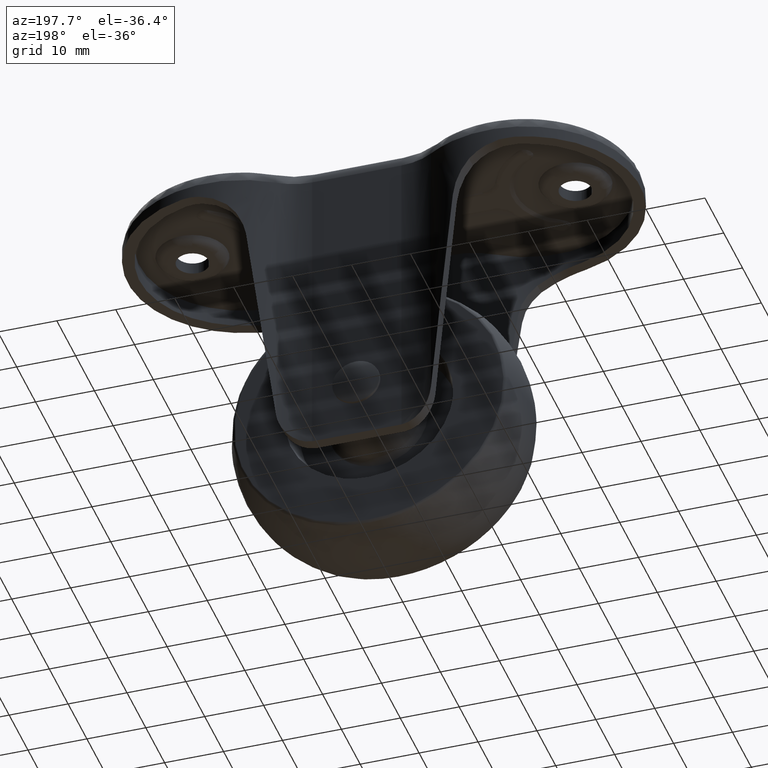
[diagram: clean part render]
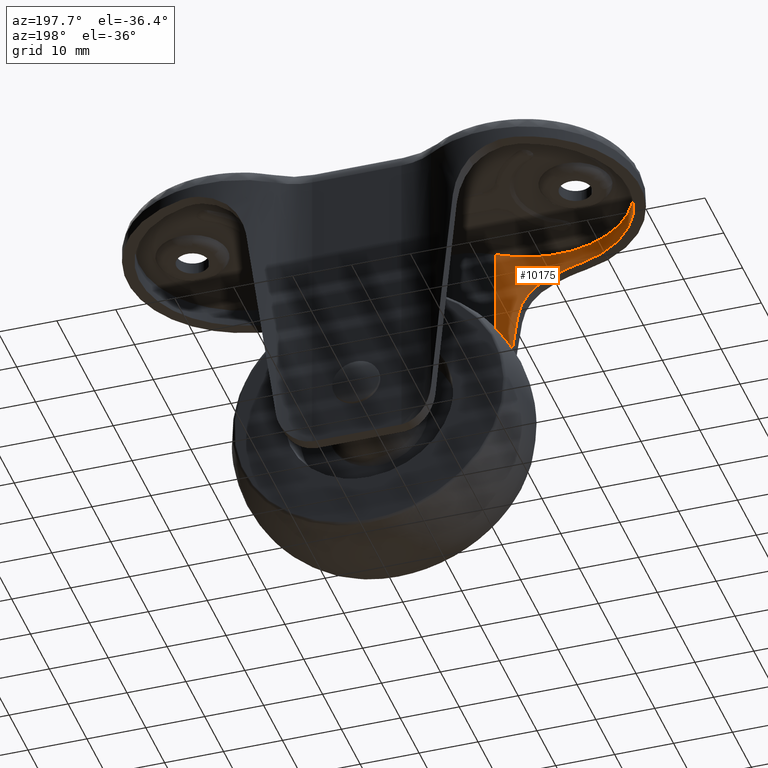
[diagram: same view with one face highlighted and labeled with its STEP entity id]
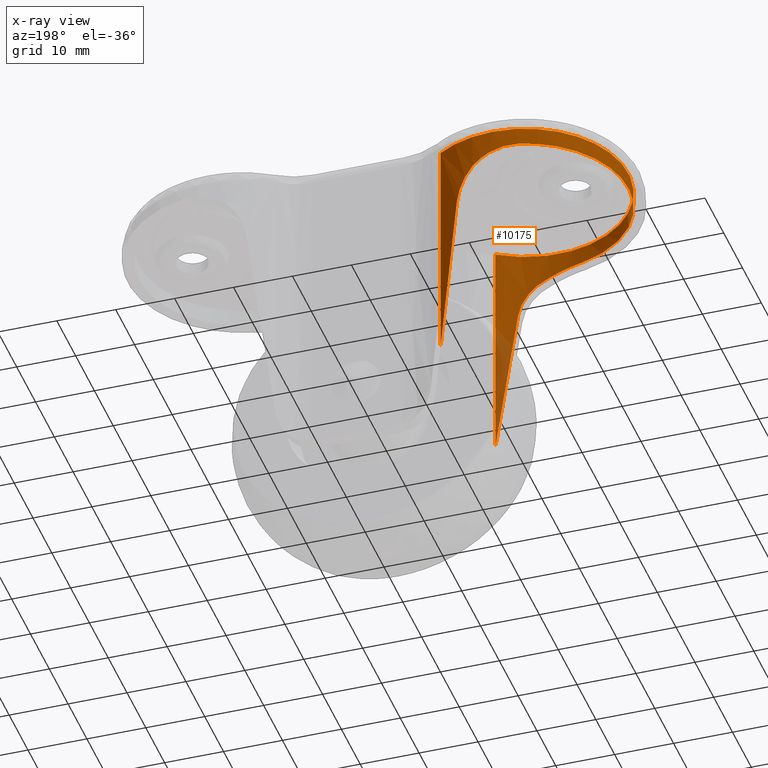
[diagram: x-ray of the same camera — body ghosted, the highlighted face saturated]
A machine part, auxiliary view. The second image highlights one B-rep face of the part: STEP entity #10175.
The next image is the same camera in x-ray: the body ghosted, the highlighted face saturated — about 10% of this face is hidden behind the body in this view.
In plain terms, the highlighted face is a freeform B-spline surface patch.
Its self-contained STEP definition (entity closure, byte-faithful):
#9586=CARTESIAN_POINT('',(-20.565739739598200,17.159716095082249,-7.781735637525290));
#9587=VERTEX_POINT('',#9586);
#9593=CARTESIAN_POINT('',(-28.248421000000100,16.976481349406850,-5.0));
#9594=VERTEX_POINT('',#9593);
#9595=CARTESIAN_POINT('',(-28.248421000000100,16.976481349406850,-5.0));
#9596=CARTESIAN_POINT('',(-27.563879356911009,17.147790175542131,-5.0));
#9597=CARTESIAN_POINT('',(-26.881096035706442,17.274823562507880,-5.058178189834202));
#9598=CARTESIAN_POINT('',(-25.860647977691588,17.404181967958088,-5.234894330271882));
#9599=CARTESIAN_POINT('',(-25.521125422855160,17.437071472463309,-5.308779721977223));
#9600=CARTESIAN_POINT('',(-25.012986543101778,17.471481885789132,-5.443068873454924));
#9601=CARTESIAN_POINT('',(-24.843317258117771,17.480475089957910,-5.491909010557856));
#9602=CARTESIAN_POINT('',(-24.507749933678109,17.493438294781509,-5.596567635670303));
#9603=CARTESIAN_POINT('',(-24.341669027072271,17.497436833756929,-5.652408377538183));
#9604=CARTESIAN_POINT('',(-23.519618210705360,17.505763877720351,-5.948883770848481));
#9605=CARTESIAN_POINT('',(-22.888518383339662,17.475245787062729,-6.240928368338763));
#9606=CARTESIAN_POINT('',(-22.132241756269000,17.400706294914489,-6.674171335395933));
#9607=CARTESIAN_POINT('',(-21.982628186241651,17.383970835756809,-6.764254526446122));
#9608=CARTESIAN_POINT('',(-21.686718068965099,17.347073463870998,-6.951383198212179));
#9609=CARTESIAN_POINT('',(-21.540695212831761,17.326939854103689,-7.048270663186229));
#9610=CARTESIAN_POINT('',(-21.110535658208359,17.262244778509459,-7.347404444212644));
#9611=CARTESIAN_POINT('',(-20.833410685897430,17.213286432074501,-7.558652866243830));
#9612=CARTESIAN_POINT('',(-20.565739739598200,17.159716095082249,-7.781735637525290));
#9613=B_SPLINE_CURVE_WITH_KNOTS('',3,(#9595,#9596,#9597,#9598,#9599,#9600,#9601,#9602,#9603,#9604,#9605,#9606,#9607,#9608,#9609,#9610,#9611,#9612),.UNSPECIFIED.,.F.,.U.,(4,2,2,2,2,2,2,2,4),(0.0,0.250000000000001,0.375000000000001,0.437500000000002,0.500000000000002,0.750000000000002,0.812500000000002,0.875000000000001,1.0),.UNSPECIFIED.);
#9614=EDGE_CURVE('',#9594,#9587,#9613,.T.);
#9661=CARTESIAN_POINT('',(-28.248421000000100,-16.976481349406850,-5.0));
#9662=VERTEX_POINT('',#9661);
#9668=CARTESIAN_POINT('',(-20.565739739598200,-17.159716095082249,-7.781735637525290));
#9669=VERTEX_POINT('',#9668);
#9670=CARTESIAN_POINT('',(-20.565739739598200,-17.159716095082249,-7.781735637525290));
#9671=CARTESIAN_POINT('',(-21.101156997771831,-17.266871852359529,-7.335507869323049));
#9672=CARTESIAN_POINT('',(-21.669593562100580,-17.354677695323609,-6.940151118333926));
#9673=CARTESIAN_POINT('',(-22.572170203714592,-17.444274421466510,-6.421693926125383));
#9674=CARTESIAN_POINT('',(-22.881397987592951,-17.467112740300060,-6.261382978243353));
#9675=CARTESIAN_POINT('',(-23.278823102452670,-17.485314838571711,-6.077052883542763));
#9676=CARTESIAN_POINT('',(-23.358853749315792,-17.488437092146889,-6.040991454448291));
#9677=CARTESIAN_POINT('',(-23.520021623530919,-17.493602293377648,-5.970495227026479));
#9678=CARTESIAN_POINT('',(-23.601276366659270,-17.495646978749541,-5.936012813529754));
#9679=CARTESIAN_POINT('',(-23.845763624313090,-17.500079602780801,-5.835427869614782));
#9680=CARTESIAN_POINT('',(-24.009553002398309,-17.500771182134930,-5.772239440157622));
#9681=CARTESIAN_POINT('',(-24.832361429510271,-17.492584317917292,-5.475231783034452));
#9682=CARTESIAN_POINT('',(-25.502872948899881,-17.448890177280621,-5.297813456750220));
#9683=CARTESIAN_POINT('',(-26.355289100845649,-17.341630199361209,-5.149008401740234));
#9684=CARTESIAN_POINT('',(-26.526491747210478,-17.317537806889909,-5.122920496495435));
#9685=CARTESIAN_POINT('',(-26.784371332948950,-17.277292766538910,-5.089329446103690));
#9686=CARTESIAN_POINT('',(-26.870510529733060,-17.263193191444639,-5.079056204664499));
#9687=CARTESIAN_POINT('',(-27.043147799848011,-17.233598618243640,-5.060366222173532));
#9688=CARTESIAN_POINT('',(-27.129716382841380,-17.218089401095330,-5.051944847789017));
#9689=CARTESIAN_POINT('',(-27.561754472267729,-17.137314295346059,-5.014640592317037));
#9690=CARTESIAN_POINT('',(-27.905871603018038,-17.062205476905561,-5.0));
#9691=CARTESIAN_POINT('',(-28.248421000000100,-16.976481349406850,-5.0));
#9692=B_SPLINE_CURVE_WITH_KNOTS('',3,(#9670,#9671,#9672,#9673,#9674,#9675,#9676,#9677,#9678,#9679,#9680,#9681,#9682,#9683,#9684,#9685,#9686,#9687,#9688,#9689,#9690,#9691),.UNSPECIFIED.,.F.,.U.,(4,2,2,2,2,2,2,2,2,2,4),(0.0,0.249999999999997,0.374999999999996,0.406249999999996,0.437499999999997,0.499999999999997,0.750000000000001,0.812500000000002,0.843750000000002,0.875000000000002,1.0),.UNSPECIFIED.);
#9693=EDGE_CURVE('',#9669,#9662,#9692,.T.);
#9739=CARTESIAN_POINT('',(-17.561019000000002,-16.272354583207651,-13.781307000000000));
#9740=VERTEX_POINT('',#9739);
#9741=CARTESIAN_POINT('',(-17.561019000000002,-16.272354583207651,-13.781307000000000));
#9742=CARTESIAN_POINT('',(-17.631800951315999,-16.300363043976699,-13.204837538678440));
#9743=CARTESIAN_POINT('',(-17.751122760634139,-16.347249003990441,-12.644791592778571));
#9744=CARTESIAN_POINT('',(-17.998819086929270,-16.439087013468189,-11.827410663854209));
#9745=CARTESIAN_POINT('',(-18.092910781273140,-16.473276827396742,-11.558752792424331));
#9746=CARTESIAN_POINT('',(-18.251464299045349,-16.528988941020000,-11.161406184220780));
#9747=CARTESIAN_POINT('',(-18.307222451180579,-16.548296838456359,-11.029898551900320));
#9748=CARTESIAN_POINT('',(-18.395276340686362,-16.578239768480600,-10.834052197153280));
#9749=CARTESIAN_POINT('',(-18.425364036317220,-16.588384201821160,-10.769006007350811));
#9750=CARTESIAN_POINT('',(-18.487025176481509,-16.608978449924820,-10.639387006863300));
#9751=CARTESIAN_POINT('',(-18.518627163392068,-16.619437406683911,-10.574760920427080));
#9752=CARTESIAN_POINT('',(-18.808392374903828,-16.714385275463879,-9.998005201110701));
#9753=CARTESIAN_POINT('',(-19.105586634789979,-16.805223025671399,-9.515489904846742));
#9754=CARTESIAN_POINT('',(-19.776720165270230,-16.986309504117362,-8.606344612358750));
#9755=CARTESIAN_POINT('',(-20.150645513300450,-17.076641200497889,-8.179720470808466));
#9756=CARTESIAN_POINT('',(-20.565739739598200,-17.159716095082249,-7.781735637525289));
#9757=B_SPLINE_CURVE_WITH_KNOTS('',3,(#9741,#9742,#9743,#9744,#9745,#9746,#9747,#9748,#9749,#9750,#9751,#9752,#9753,#9754,#9755,#9756),.UNSPECIFIED.,.F.,.U.,(4,2,2,2,2,2,2,4),(0.0,0.250000000000003,0.375000000000004,0.437500000000004,0.468750000000005,0.500000000000006,0.750000000000003,1.0),.UNSPECIFIED.);
#9758=EDGE_CURVE('',#9740,#9669,#9757,.T.);
#9789=CARTESIAN_POINT('',(-14.252395133952280,-14.533898285573720,-40.727884689475850));
#9790=VERTEX_POINT('',#9789);
#9791=CARTESIAN_POINT('',(-14.252395133952261,-14.533898285573720,-40.727884689475907));
#9792=CARTESIAN_POINT('',(-15.813351052193472,-15.580801270950804,-28.014919534274089));
#9793=CARTESIAN_POINT('',(-17.561018999999980,-16.272354583207651,-13.781306999999989));
#9801=(BOUNDED_CURVE()B_SPLINE_CURVE(2,(#9791,#9792,#9793),.UNSPECIFIED.,.F.,.U.)CURVE()GEOMETRIC_REPRESENTATION_ITEM()QUASI_UNIFORM_CURVE()RATIONAL_B_SPLINE_CURVE((1.0,0.994281928487948,1.0))REPRESENTATION_ITEM(''));
#9802=EDGE_CURVE('',#9790,#9740,#9801,.T.);
#9982=CARTESIAN_POINT('',(-28.248421000000100,-16.976481349406839,-5.0));
#9983=CARTESIAN_POINT('',(-41.500000000000000,-13.660229568602624,-5.0));
#9984=CARTESIAN_POINT('',(-41.500000000000000,0.0,-5.0));
#9985=CARTESIAN_POINT('',(-41.500000000000000,13.660229568602624,-5.0));
#9986=CARTESIAN_POINT('',(-28.248421000000111,16.976481349406839,-5.0));
#9994=(BOUNDED_CURVE()B_SPLINE_CURVE(2,(#9982,#9983,#9984,#9985,#9986),.UNSPECIFIED.,.F.,.U.)B_SPLINE_CURVE_WITH_KNOTS((3,2,3),(0.0,0.500000000000000,1.0),.UNSPECIFIED.)CURVE()GEOMETRIC_REPRESENTATION_ITEM()RATIONAL_B_SPLINE_CURVE((1.0,0.788278794046155,1.0,0.788278794046155,1.0))REPRESENTATION_ITEM(''));
#9995=EDGE_CURVE('',#9662,#9594,#9994,.T.);
#10022=CARTESIAN_POINT('',(-14.252394908147000,14.533898318463720,-40.727886528512236));
#10023=VERTEX_POINT('',#10022);
#10037=CARTESIAN_POINT('',(-17.561019000000002,16.272354583207651,-13.781307000000000));
#10038=VERTEX_POINT('',#10037);
#10039=CARTESIAN_POINT('',(-17.561018999999991,16.272354583207651,-13.781306999999950));
#10040=CARTESIAN_POINT('',(-15.813350924327985,15.580801220354351,-28.014920575654795));
#10041=CARTESIAN_POINT('',(-14.252394908147000,14.533898318463720,-40.727886528512236));
#10049=(BOUNDED_CURVE()B_SPLINE_CURVE(2,(#10039,#10040,#10041),.UNSPECIFIED.,.F.,.U.)CURVE()GEOMETRIC_REPRESENTATION_ITEM()QUASI_UNIFORM_CURVE()RATIONAL_B_SPLINE_CURVE((1.0,0.994281927658428,1.0))REPRESENTATION_ITEM(''));
#10050=EDGE_CURVE('',#10038,#10023,#10049,.T.);
#10092=CARTESIAN_POINT('',(-20.565739739598200,17.159716095082249,-7.781735637525290));
#10093=CARTESIAN_POINT('',(-20.150645637160618,17.076641225286640,-8.179720352053577));
#10094=CARTESIAN_POINT('',(-19.776470769837189,16.986255014961561,-8.606586181690265));
#10095=CARTESIAN_POINT('',(-19.272593527154800,16.850278712482410,-9.289303712875389));
#10096=CARTESIAN_POINT('',(-19.114265084659589,16.804870880509949,-9.523992083315340));
#10097=CARTESIAN_POINT('',(-18.891288075370969,16.737893691099551,-9.886994612013876));
#10098=CARTESIAN_POINT('',(-18.819385502161730,16.715757049802200,-10.009826612327080));
#10099=CARTESIAN_POINT('',(-18.680485791014931,16.672074523094899,-10.259238121670791));
#10100=CARTESIAN_POINT('',(-18.613424558502508,16.650507549723489,-10.385945655038279));
#10101=CARTESIAN_POINT('',(-18.291296177888050,16.544916049254780,-11.027768148337341));
#10102=CARTESIAN_POINT('',(-18.080827854060750,16.469496658924321,-11.556587755728010));
#10103=CARTESIAN_POINT('',(-17.751088628856980,16.347232969746958,-12.645104170964350));
#10104=CARTESIAN_POINT('',(-17.631806188735592,16.300365116426789,-13.204794883301579));
#10105=CARTESIAN_POINT('',(-17.561019000000002,16.272354583207651,-13.781307000000000));
#10106=B_SPLINE_CURVE_WITH_KNOTS('',3,(#10092,#10093,#10094,#10095,#10096,#10097,#10098,#10099,#10100,#10101,#10102,#10103,#10104,#10105),.UNSPECIFIED.,.F.,.U.,(4,2,2,2,2,2,4),(0.0,0.249999999999998,0.374999999999998,0.437499999999997,0.499999999999997,0.749999999999999,1.0),.UNSPECIFIED.);
#10107=EDGE_CURVE('',#9587,#10038,#10106,.T.);
#10113=CARTESIAN_POINT('',(-13.800184848228749,14.220188847891491,-1.031802836787193));
#10114=CARTESIAN_POINT('',(-13.800184848228749,14.220188847891491,-41.720288620805370));
#10115=CARTESIAN_POINT('',(-26.754691893345928,23.512159485968205,-1.031802836787193));
#10116=CARTESIAN_POINT('',(-26.754691893345928,23.512159485968205,-41.720288620805377));
#10117=CARTESIAN_POINT('',(-37.210555273507012,11.477422592447150,-1.031802836787193));
#10118=CARTESIAN_POINT('',(-37.210555273507012,11.477422592447150,-41.720288620805370));
#10119=CARTESIAN_POINT('',(-47.666418653668082,-0.557314301073902,-1.031802836787193));
#10120=CARTESIAN_POINT('',(-47.666418653668082,-0.557314301073902,-41.720288620805377));
#10121=CARTESIAN_POINT('',(-36.655653702716307,-12.086539180299830,-1.031802836787193));
#10122=CARTESIAN_POINT('',(-36.655653702716307,-12.086539180299830,-41.720288620805370));
#10123=CARTESIAN_POINT('',(-25.644888751764530,-23.615764059525759,-1.031802836787193));
#10124=CARTESIAN_POINT('',(-25.644888751764530,-23.615764059525759,-41.720288620805377));
#10125=CARTESIAN_POINT('',(-13.142127229769059,-13.724306864300191,-1.031802836787193));
#10126=CARTESIAN_POINT('',(-13.142127229769059,-13.724306864300191,-41.720288620805370));
#10134=(BOUNDED_SURFACE()B_SPLINE_SURFACE(1,2,((#10113,#10115,#10117,#10119,#10121,#10123,#10125),(#10114,#10116,#10118,#10120,#10122,#10124,#10126)),.UNSPECIFIED.,.F.,.F.,.U.)B_SPLINE_SURFACE_WITH_KNOTS((2,2),(3,2,2,3),(0.0,40.688485784018177),(0.0,27.104370010185239,54.208740020370477,81.313110030555720),.UNSPECIFIED.)GEOMETRIC_REPRESENTATION_ITEM()RATIONAL_B_SPLINE_SURFACE(((1.0,0.739239427022596,1.0,0.739239427022596,1.0,0.739239427022596,1.0),(1.0,0.739239427022596,1.0,0.739239427022596,1.0,0.739239427022596,1.0)))REPRESENTATION_ITEM('')SURFACE());
#10135=ORIENTED_EDGE('',*,*,#10107,.T.);
#10136=ORIENTED_EDGE('',*,*,#10050,.T.);
#10137=CARTESIAN_POINT('',(-14.252394908147000,14.533898318463720,-2.0));
#10138=VERTEX_POINT('',#10137);
#10139=CARTESIAN_POINT('',(-14.252394908147000,14.533898318463720,-2.0));
#10140=CARTESIAN_POINT('',(-14.252394908147000,14.533898318463720,-40.727886528512236));
#10141=QUASI_UNIFORM_CURVE('',1,(#10139,#10140),.UNSPECIFIED.,.F.,.U.);
#10142=EDGE_CURVE('',#10138,#10023,#10141,.T.);
#10143=ORIENTED_EDGE('',*,*,#10142,.F.);
#10144=CARTESIAN_POINT('',(-14.252395133952280,-14.533898285573720,-2.0));
#10145=VERTEX_POINT('',#10144);
#10146=CARTESIAN_POINT('',(-14.252395133952280,-14.533898285573720,-2.0));
#10147=CARTESIAN_POINT('',(-27.013097374096603,-23.092254812238167,-2.000000000000000));
#10148=CARTESIAN_POINT('',(-37.150549160458681,-11.546127349824250,-2.0));
#10149=CARTESIAN_POINT('',(-47.288000946820759,0.000000112589668,-2.000000000000000));
#10150=CARTESIAN_POINT('',(-37.150549048815378,11.546127476981230,-2.0));
#10151=CARTESIAN_POINT('',(-27.013097150809998,23.092254841372796,-2.000000000000000));
#10152=CARTESIAN_POINT('',(-14.252394908147000,14.533898318463720,-2.0));
#10160=(BOUNDED_CURVE()B_SPLINE_CURVE(2,(#10146,#10147,#10148,#10149,#10150,#10151,#10152),.UNSPECIFIED.,.F.,.U.)B_SPLINE_CURVE_WITH_KNOTS((3,2,2,3),(0.0,0.333333333333333,0.666666666666667,1.0),.UNSPECIFIED.)CURVE()GEOMETRIC_REPRESENTATION_ITEM()RATIONAL_B_SPLINE_CURVE((1.0,0.751459948836402,1.0,0.751459948836402,1.0,0.751459948836402,1.0))REPRESENTATION_ITEM(''));
#10161=EDGE_CURVE('',#10145,#10138,#10160,.T.);
#10162=ORIENTED_EDGE('',*,*,#10161,.F.);
#10163=CARTESIAN_POINT('',(-14.252395133952280,-14.533898285573720,-2.0));
#10164=CARTESIAN_POINT('',(-14.252395133952280,-14.533898285573720,-40.727884689475850));
#10165=QUASI_UNIFORM_CURVE('',1,(#10163,#10164),.UNSPECIFIED.,.F.,.U.);
#10166=EDGE_CURVE('',#10145,#9790,#10165,.T.);
#10167=ORIENTED_EDGE('',*,*,#10166,.T.);
#10168=ORIENTED_EDGE('',*,*,#9802,.T.);
#10169=ORIENTED_EDGE('',*,*,#9758,.T.);
#10170=ORIENTED_EDGE('',*,*,#9693,.T.);
#10171=ORIENTED_EDGE('',*,*,#9995,.T.);
#10172=ORIENTED_EDGE('',*,*,#9614,.T.);
#10173=EDGE_LOOP('',(#10135,#10136,#10143,#10162,#10167,#10168,#10169,#10170,#10171,#10172));
#10174=FACE_OUTER_BOUND('',#10173,.T.);
#10175=ADVANCED_FACE('',(#10174),#10134,.F.);